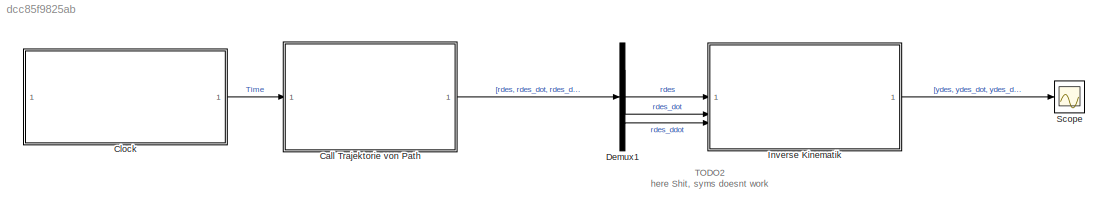
MODEL slx_dcc85f9825ab
KIND model
CONFIG AbsTol = auto
CONFIG EnableMultiTasking = off
CONFIG FixedStep = auto
CONFIG MaxStep = auto
CONFIG MinStep = auto
CONFIG RelTol = 1e-3
CONFIG SampleTimeConstraint = Unconstrained
CONFIG SolverName = VariableStepAuto
CONFIG StartTime = 0.0
CONFIG StopTime = 10.0
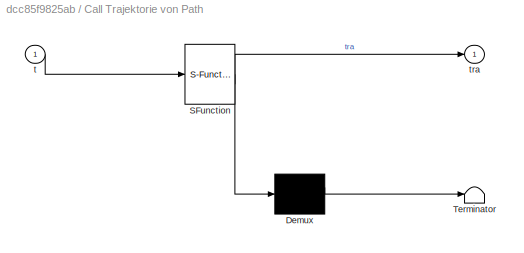
BLOCK [SubSystem] Call Trajektorie von Path
  ErrorFcn = Stateflow.Translate.translate
  PermitHierarchicalResolution = ExplicitOnly
  SFBlockType = MATLAB Function
  TreatAsAtomicUnit = on
BLOCK [Demux] Call Trajektorie von Path/ Demux 
  Outputs = 1
BLOCK [S-Function] Call Trajektorie von Path/ SFunction 
  EnableBusSupport = on
  FunctionName = sf_sfun
  PortCounts = [1 2]
  SFcnIsStateOwnerBlock = off
  SFunctionDeploymentMode = off
  Tag = Stateflow S-Function 4
BLOCK [Terminator] Call Trajektorie von Path/ Terminator 
BLOCK [Inport] Call Trajektorie von Path/t
BLOCK [Outport] Call Trajektorie von Path/tra
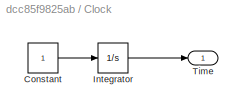
BLOCK [SubSystem] Clock
BLOCK [Constant] Clock/Constant
BLOCK [Integrator] Clock/Integrator
BLOCK [Outport] Clock/Time
BLOCK [Demux] Demux1
  Outputs = 3
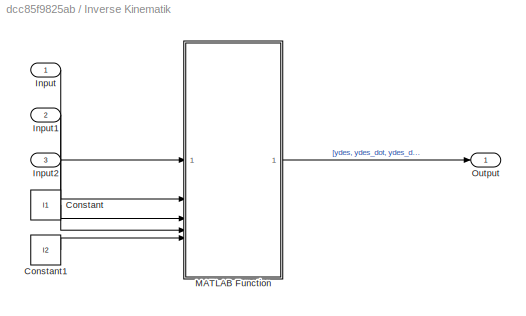
BLOCK [SubSystem] Inverse Kinematik
BLOCK [Constant] Inverse Kinematik/Constant
  Value = l1
BLOCK [Constant] Inverse Kinematik/Constant1
  Value = l2
BLOCK [Inport] Inverse Kinematik/Input
BLOCK [Inport] Inverse Kinematik/Input1
  Port = 2
BLOCK [Inport] Inverse Kinematik/Input2
  Port = 3
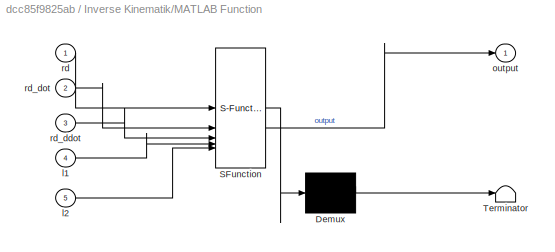
BLOCK [SubSystem] Inverse Kinematik/MATLAB Function
  ErrorFcn = Stateflow.Translate.translate
  PermitHierarchicalResolution = ExplicitOnly
  SFBlockType = MATLAB Function
  TreatAsAtomicUnit = on
BLOCK [Demux] Inverse Kinematik/MATLAB Function/ Demux 
  Outputs = 1
BLOCK [S-Function] Inverse Kinematik/MATLAB Function/ SFunction 
  EnableBusSupport = on
  FunctionName = sf_sfun
  PortCounts = [5 2]
  SFcnIsStateOwnerBlock = off
  SFunctionDeploymentMode = off
  Tag = Stateflow S-Function 3
BLOCK [Terminator] Inverse Kinematik/MATLAB Function/ Terminator 
BLOCK [Inport] Inverse Kinematik/MATLAB Function/l1
  Port = 4
BLOCK [Inport] Inverse Kinematik/MATLAB Function/l2
  Port = 5
BLOCK [Outport] Inverse Kinematik/MATLAB Function/output
BLOCK [Inport] Inverse Kinematik/MATLAB Function/rd
BLOCK [Inport] Inverse Kinematik/MATLAB Function/rd_ddot
  Port = 3
BLOCK [Inport] Inverse Kinematik/MATLAB Function/rd_dot
  Port = 2
BLOCK [Outport] Inverse Kinematik/Output
BLOCK [Scope] Scope
  Floating = off
  NumInputPorts = 1
  ScopeSpecificationString = Simulink.scopes.TimeScopeBlockCfg('CurrentConfiguration', extmgr.ConfigurationSet(extmgr.Configuration('Core','General UI',true),extmgr.Configuration('Core','Source UI',true),extmgr.Configuration('Sources','WiredSimulink',true),extmgr.Configuration('Visuals','Time Domain',true),extmgr.Configuration('Tools','Plot Navigation',true),extmgr.Configuration('Tools','Measurements',true)),'Version','2024a'...<+1ch>
ANNOTATION (root): TODO2 here Shit, syms doesnt work
LINE Call Trajektorie von Path:1 -> Demux1:1
LINE Clock/Constant:1 -> Clock/Integrator:1
LINE Clock/Integrator:1 -> Clock/Time:1
LINE Clock:1 -> Call Trajektorie von Path:1
LINE Demux1:1 -> Inverse Kinematik:1
LINE Demux1:2 -> Inverse Kinematik:2
LINE Demux1:3 -> Inverse Kinematik:3
LINE Inverse Kinematik/Constant1:1 -> Inverse Kinematik/MATLAB Function:5
LINE Inverse Kinematik/Constant:1 -> Inverse Kinematik/MATLAB Function:4
LINE Inverse Kinematik/Input1:1 -> Inverse Kinematik/MATLAB Function:2
LINE Inverse Kinematik/Input2:1 -> Inverse Kinematik/MATLAB Function:3
LINE Inverse Kinematik/Input:1 -> Inverse Kinematik/MATLAB Function:1
LINE Inverse Kinematik/MATLAB Function:1 -> Inverse Kinematik/Output:1
LINE Inverse Kinematik:1 -> Scope:1
CHART Inverse Kinematik/MATLAB Function states=1 transitions=1
  STATE_LABEL 'eML_blk_kernel()'
  STATE_LABEL 'SCRIPT:\nfunction output = fcn(rd,rd_dot,rd_ddot,l1,l2)\n%SHIT, I don t want to do integration, but technically i could define\n%alpha0 beta0 and shit and then compute the numerical shit then integrate\n%and ... but annoying\n\n%LSG via optimazation\n%could feed in y...\n\n%just say al,beta = 0 for initial guess\nT_0EF = T_0EF_fcn(alpha,beta,l1,l2);\n\nr = T_0EF(1:3,4);\n\nerror = norm(rd - r);\n\n% Optimization ...<+311ch>'
CHART Call Trajektorie von Path states=1 transitions=1
  STATE_LABEL 'eML_blk_kernel()'
  STATE_LABEL 'SCRIPT:\nfunction tra = trajektorie(t)\n%Trajektorie\ntra = CALCtrajektorie(t);\nend'
CHART  states=0 transitions=0
CHART  states=0 transitions=0
